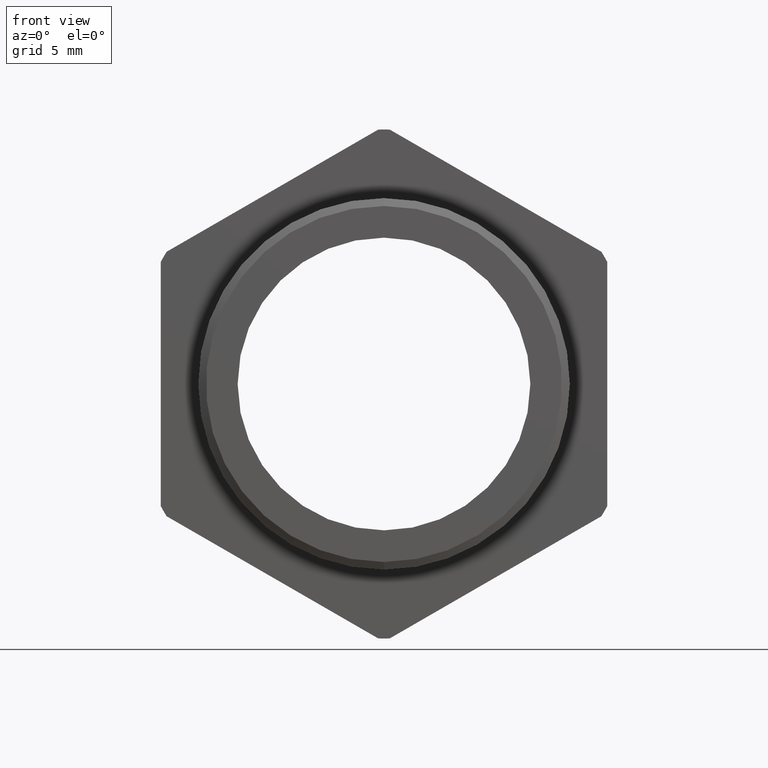
[diagram: clean part render]
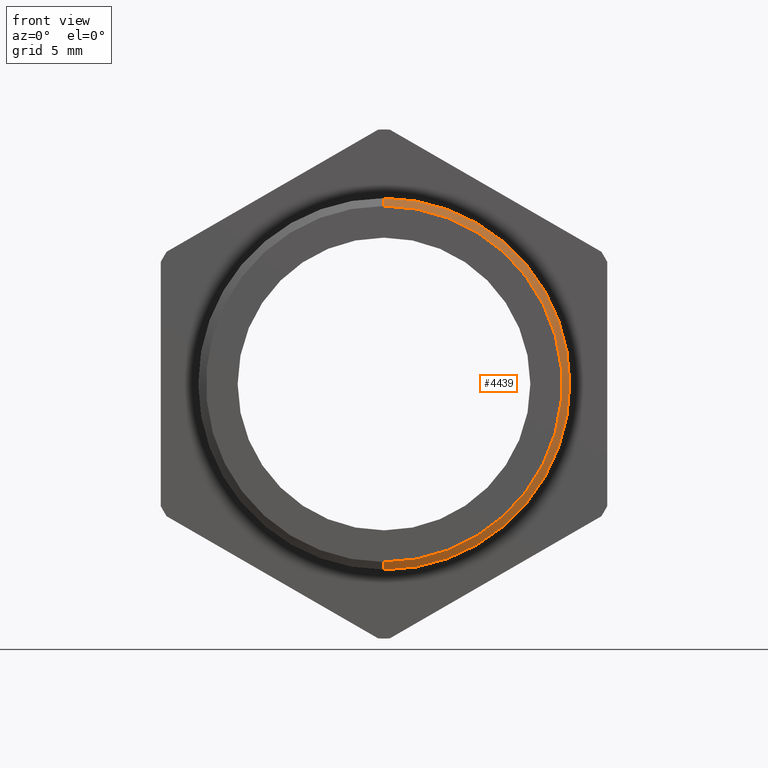
[diagram: same view with one face highlighted and labeled with its STEP entity id]
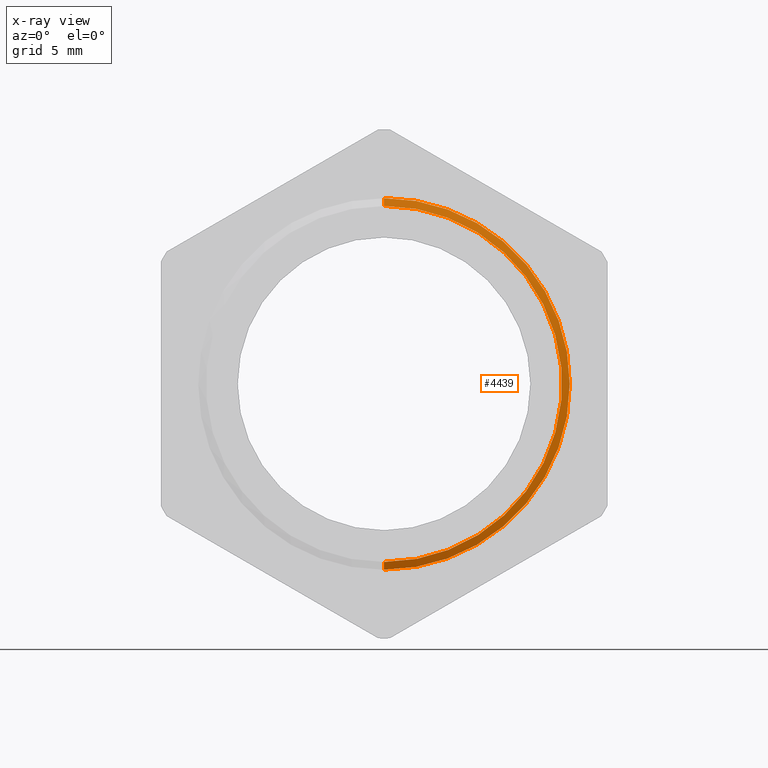
[diagram: x-ray of the same camera — body ghosted, the highlighted face saturated]
A machine part, front view. The second image highlights one B-rep face of the part: STEP entity #4439.
The next image is the same camera in x-ray: the body ghosted, the highlighted face saturated — about 0% of this face is hidden behind the body in this view.
In plain terms, the highlighted conical surface has half-angle 60 deg.
Its self-contained STEP definition (entity closure, byte-faithful):
#5 = ORIENTED_EDGE ( 'NONE', *, *, #17, .F. ) ;
#6 = VERTEX_POINT ( 'NONE', #6372 ) ;
#7 = ORIENTED_EDGE ( 'NONE', *, *, #18, .F. ) ;
#8 = VERTEX_POINT ( 'NONE', #6367 ) ;
#17 = EDGE_CURVE ( 'NONE', #4142, #6, #6419, .T. ) ;
#18 = EDGE_CURVE ( 'NONE', #6, #8, #6415, .T. ) ;
#19 = ORIENTED_EDGE ( 'NONE', *, *, #21, .T. ) ;
#21 = EDGE_CURVE ( 'NONE', #4132, #8, #6409, .T. ) ;
#451 = DIRECTION ( 'NONE',  ( 0.0000000000000000000, 0.0000000000000000000, 1.000000000000000000 ) ) ;
#452 = DIRECTION ( 'NONE',  ( -0.0000000000000000000, 1.000000000000000000, -0.0000000000000000000 ) ) ;
#453 = CARTESIAN_POINT ( 'NONE',  ( 0.0000000000000000000, -0.07424510941705199400, 0.0000000000000000000 ) ) ;
#454 = AXIS2_PLACEMENT_3D ( 'NONE', #453, #452, #451 ) ;
#456 = CONICAL_SURFACE ( 'NONE', #454, 0.3287738815610546400, 1.047197551196596700 ) ;
#457 = FACE_OUTER_BOUND ( 'NONE', #4440, .T. ) ;
#458 = DIRECTION ( 'NONE',  ( 0.0000000000000000000, 0.0000000000000000000, 1.000000000000000000 ) ) ;
#459 = DIRECTION ( 'NONE',  ( -0.0000000000000000000, 1.000000000000000000, -0.0000000000000000000 ) ) ;
#460 = CARTESIAN_POINT ( 'NONE',  ( 0.0000000000000000000, -0.08219746364411292800, 0.0000000000000000000 ) ) ;
#461 = AXIS2_PLACEMENT_3D ( 'NONE', #460, #459, #458 ) ;
#462 = CIRCLE ( 'NONE', #461, 0.3150000000000000000 ) ;
#4132 = VERTEX_POINT ( 'NONE', #7054 ) ;
#4142 = VERTEX_POINT ( 'NONE', #7071 ) ;
#4435 = ORIENTED_EDGE ( 'NONE', *, *, #4436, .T. ) ;
#4436 = EDGE_CURVE ( 'NONE', #4142, #4132, #462, .T. ) ;
#4439 = ADVANCED_FACE ( 'NONE', ( #457 ), #456, .T. ) ;
#4440 = EDGE_LOOP ( 'NONE', ( #4435, #19, #7, #5 ) ) ;
#6367 = CARTESIAN_POINT ( 'NONE',  ( 0.0000000000000000000, -0.07424510941705199400, -0.3287738815610546400 ) ) ;
#6372 = CARTESIAN_POINT ( 'NONE',  ( 4.026318816969966200E-017, -0.07424510941705199400, 0.3287738815610546400 ) ) ;
#6406 = DIRECTION ( 'NONE',  ( 1.060575238724906300E-016, 0.5000000000000008900, -0.8660254037844380400 ) ) ;
#6407 = VECTOR ( 'NONE', #6406, 39.37007874015748100 ) ;
#6408 = CARTESIAN_POINT ( 'NONE',  ( 4.026318816969965600E-017, -0.07424510941705199400, -0.3287738815610546400 ) ) ;
#6409 = LINE ( 'NONE', #6408, #6407 ) ;
#6411 = DIRECTION ( 'NONE',  ( 0.0000000000000000000, 0.0000000000000000000, 1.000000000000000000 ) ) ;
#6412 = DIRECTION ( 'NONE',  ( -0.0000000000000000000, 1.000000000000000000, -0.0000000000000000000 ) ) ;
#6413 = CARTESIAN_POINT ( 'NONE',  ( 0.0000000000000000000, -0.07424510941705199400, 0.0000000000000000000 ) ) ;
#6414 = AXIS2_PLACEMENT_3D ( 'NONE', #6413, #6412, #6411 ) ;
#6415 = CIRCLE ( 'NONE', #6414, 0.3287738815610546400 ) ;
#6416 = DIRECTION ( 'NONE',  ( 0.0000000000000000000, 0.5000000000000008900, 0.8660254037844380400 ) ) ;
#6417 = VECTOR ( 'NONE', #6416, 39.37007874015748100 ) ;
#6418 = CARTESIAN_POINT ( 'NONE',  ( 0.0000000000000000000, -0.07424510941705199400, 0.3287738815610546400 ) ) ;
#6419 = LINE ( 'NONE', #6418, #6417 ) ;
#7054 = CARTESIAN_POINT ( 'NONE',  ( 0.0000000000000000000, -0.08219746364411292800, -0.3150000000000000000 ) ) ;
#7071 = CARTESIAN_POINT ( 'NONE',  ( 3.857637417314162700E-017, -0.08219746364411292800, 0.3150000000000000000 ) ) ;